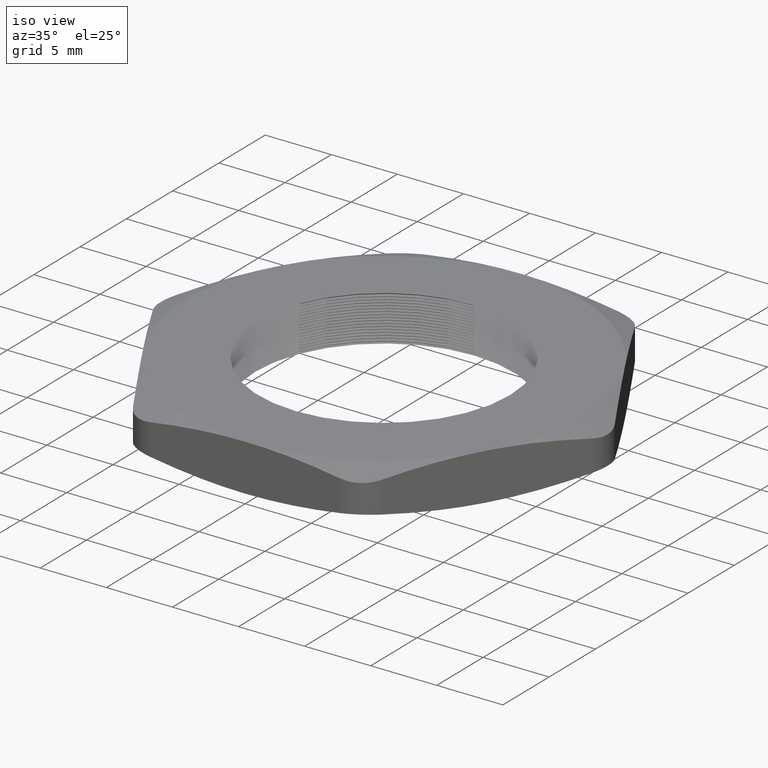
[diagram: clean part render]
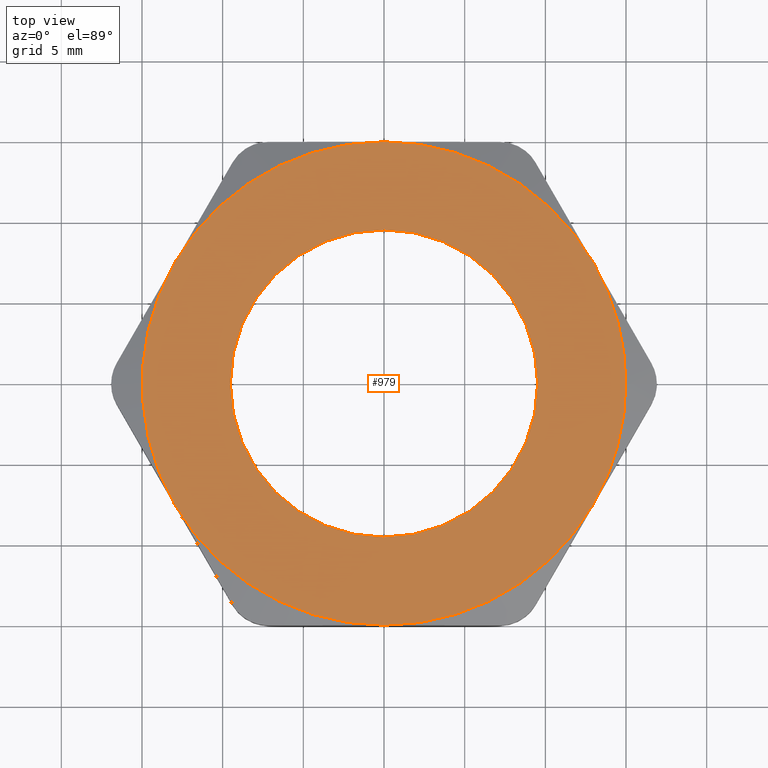
[diagram: tour spotlight — one face highlighted and labeled with its STEP entity id]
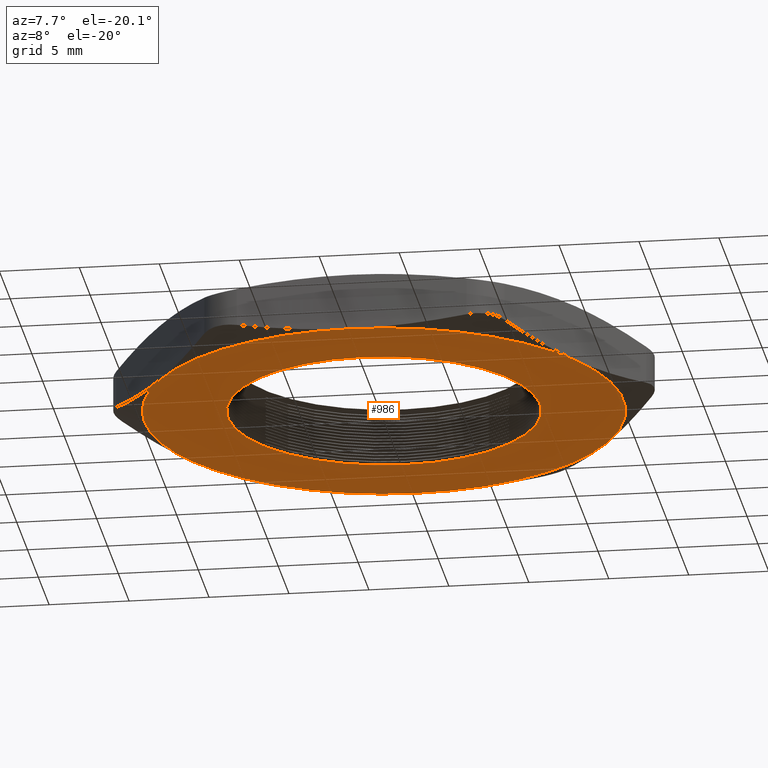
[diagram: tour spotlight — one face highlighted and labeled with its STEP entity id]
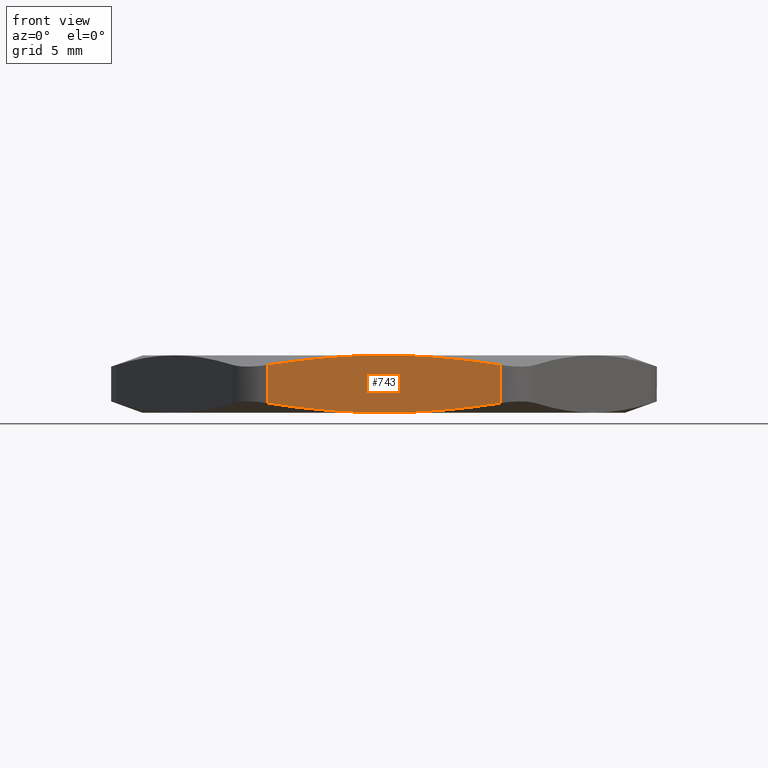
[diagram: tour spotlight — one face highlighted and labeled with its STEP entity id]
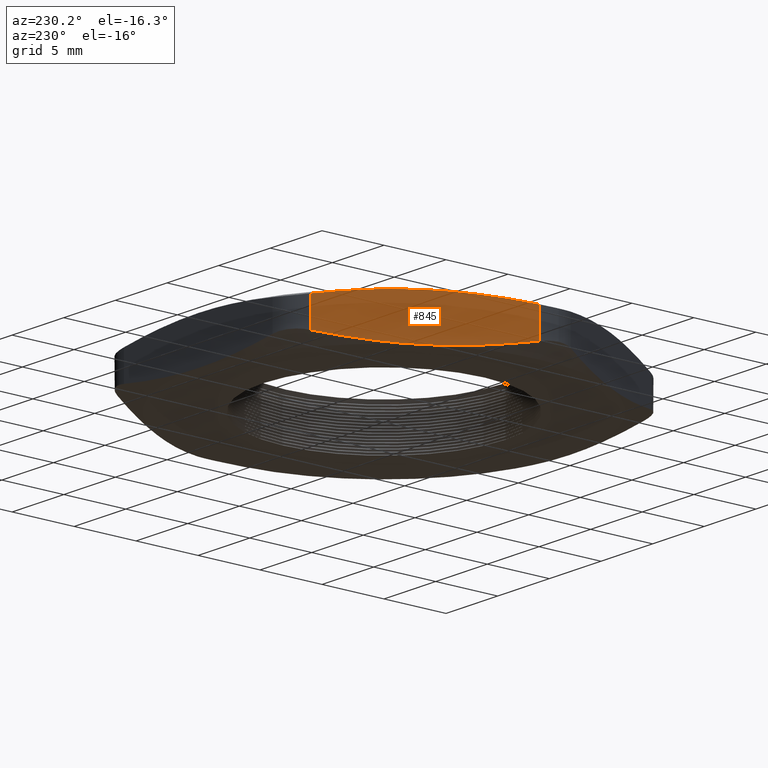
[diagram: tour spotlight — one face highlighted and labeled with its STEP entity id]
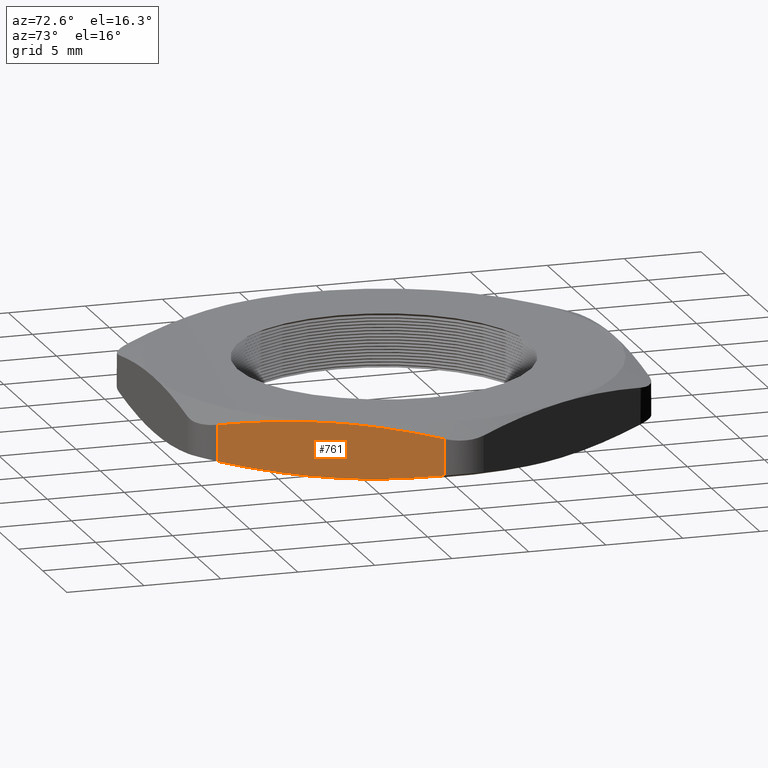
[diagram: tour spotlight — one face highlighted and labeled with its STEP entity id]
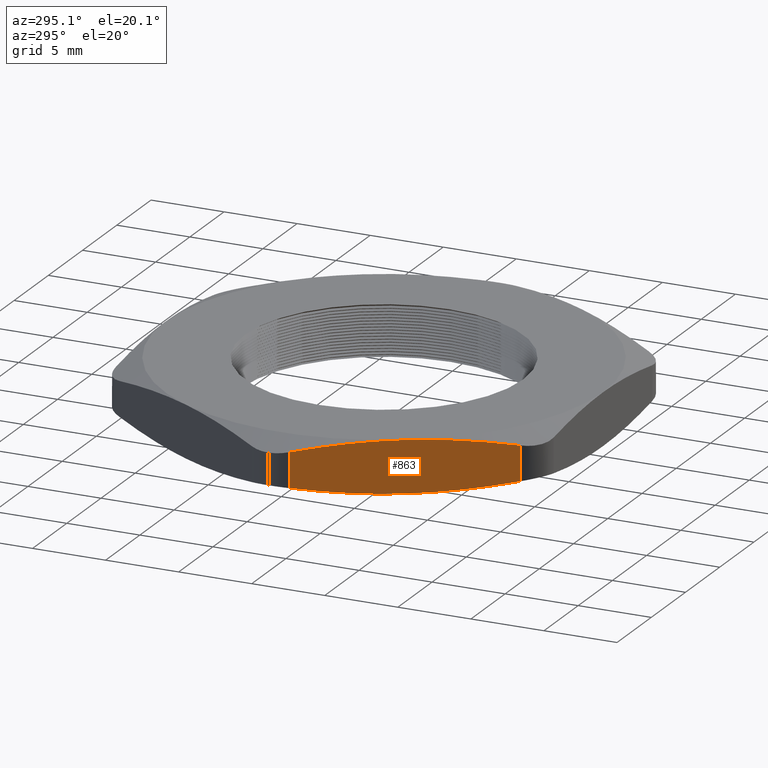
[diagram: tour spotlight — one face highlighted and labeled with its STEP entity id]
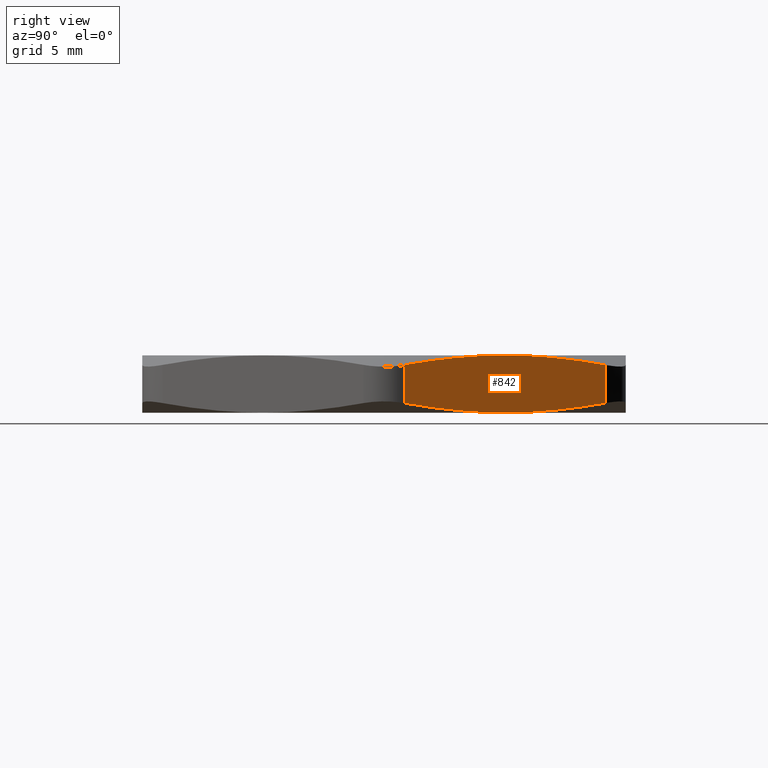
[diagram: tour spotlight — one face highlighted and labeled with its STEP entity id]
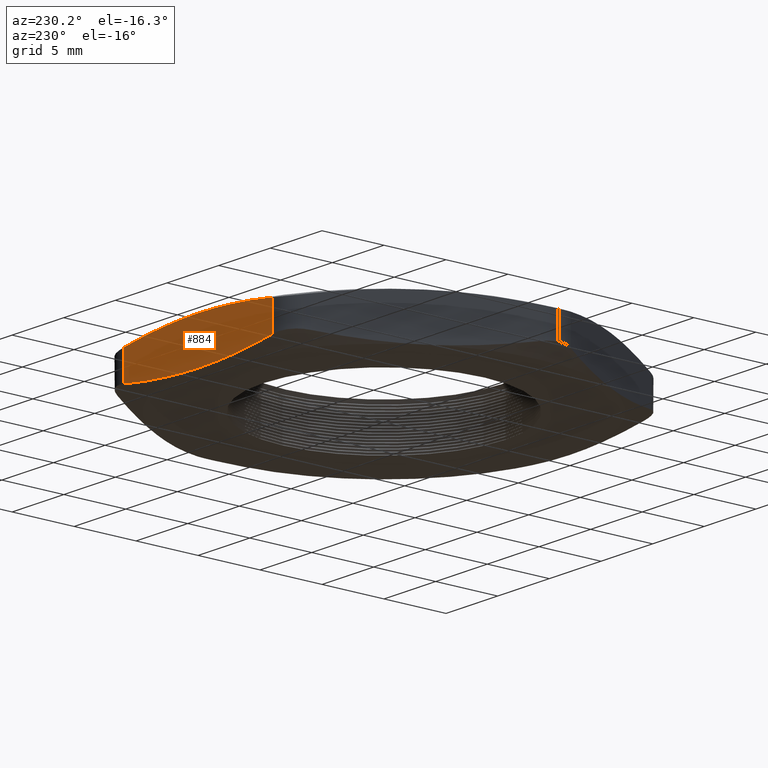
[diagram: tour spotlight — one face highlighted and labeled with its STEP entity id]
A machine part: a face-by-face anatomy tour. The part has 97 B-rep faces; the first image is the clean iso view, then the 8 largest visible faces are spotlighted one at a time (largest first), each with its STEP entity span.

Face 1 — top view, entity #979. In plain terms, the highlighted planar face has unit normal (-0, 0, 1).
Definition (entity closure, byte-faithful):
#46 = VERTEX_POINT ( 'NONE', #1362 ) ;
#54 = EDGE_CURVE ( 'NONE', #46, #60, #1412, .T. ) ;
#60 = VERTEX_POINT ( 'NONE', #1399 ) ;
#770 = VERTEX_POINT ( 'NONE', #2114 ) ;
#792 = VERTEX_POINT ( 'NONE', #2140 ) ;
#810 = EDGE_CURVE ( 'NONE', #811, #812, #2186, .T. ) ;
#811 = VERTEX_POINT ( 'NONE', #2181 ) ;
#812 = VERTEX_POINT ( 'NONE', #2180 ) ;
#833 = VERTEX_POINT ( 'NONE', #2202 ) ;
#852 = VERTEX_POINT ( 'NONE', #2270 ) ;
#895 = VERTEX_POINT ( 'NONE', #2366 ) ;
#959 = ORIENTED_EDGE ( 'NONE', *, *, #54, .T. ) ;
#960 = ORIENTED_EDGE ( 'NONE', *, *, #961, .T. ) ;
#961 = EDGE_CURVE ( 'NONE', #833, #811, #2556, .T. ) ;
#962 = ORIENTED_EDGE ( 'NONE', *, *, #810, .T. ) ;
#963 = ORIENTED_EDGE ( 'NONE', *, *, #964, .T. ) ;
#964 = EDGE_CURVE ( 'NONE', #812, #895, #2551, .T. ) ;
#965 = ORIENTED_EDGE ( 'NONE', *, *, #966, .T. ) ;
#966 = EDGE_CURVE ( 'NONE', #895, #852, #2546, .T. ) ;
#967 = ORIENTED_EDGE ( 'NONE', *, *, #968, .T. ) ;
#968 = EDGE_CURVE ( 'NONE', #852, #792, #2541, .T. ) ;
#969 = ORIENTED_EDGE ( 'NONE', *, *, #970, .T. ) ;
#970 = EDGE_CURVE ( 'NONE', #792, #770, #2536, .T. ) ;
#979 = ADVANCED_FACE ( 'NONE', ( #2569, #2568 ), #2567, .T. ) ;
#980 = EDGE_LOOP ( 'NONE', ( #981, #959 ) ) ;
#981 = ORIENTED_EDGE ( 'NONE', *, *, #982, .T. ) ;
#982 = EDGE_CURVE ( 'NONE', #60, #46, #2565, .T. ) ;
#983 = EDGE_LOOP ( 'NONE', ( #960, #962, #963, #965, #967, #969, #1023 ) ) ;
#1023 = ORIENTED_EDGE ( 'NONE', *, *, #1024, .T. ) ;
#1024 = EDGE_CURVE ( 'NONE', #770, #833, #2627, .T. ) ;
#1362 = CARTESIAN_POINT ( 'NONE',  ( 0.3749999999999999400, 4.684119303370593600E-017, 0.1400000000000000100 ) ) ;
#1399 = CARTESIAN_POINT ( 'NONE',  ( -0.3749999999999999400, 0.0000000000000000000, 0.1400000000000000100 ) ) ;
#1408 = DIRECTION ( 'NONE',  ( -1.000000000000000000, 0.0000000000000000000, 0.0000000000000000000 ) ) ;
#1409 = DIRECTION ( 'NONE',  ( -0.0000000000000000000, -0.0000000000000000000, -1.000000000000000000 ) ) ;
#1410 = CARTESIAN_POINT ( 'NONE',  ( 0.0000000000000000000, 0.0000000000000000000, 0.1400000000000000100 ) ) ;
#1411 = AXIS2_PLACEMENT_3D ( 'NONE', #1410, #1409, #1408 ) ;
#1412 = CIRCLE ( 'NONE', #1411, 0.3749999999999999400 ) ;
#2114 = CARTESIAN_POINT ( 'NONE',  ( 0.0000000000000000000, -0.5899999999999998600, 0.1400000000000000100 ) ) ;
#2140 = CARTESIAN_POINT ( 'NONE',  ( -0.5109549882328188200, -0.2949999999999997100, 0.1400000000000000100 ) ) ;
#2180 = CARTESIAN_POINT ( 'NONE',  ( 0.5109549882328189300, 0.2949999999999998700, 0.1400000000000000100 ) ) ;
#2181 = CARTESIAN_POINT ( 'NONE',  ( 0.5900000000000000800, 0.0000000000000000000, 0.1400000000000000100 ) ) ;
#2182 = DIRECTION ( 'NONE',  ( 1.000000000000000000, 0.0000000000000000000, 0.0000000000000000000 ) ) ;
#2183 = DIRECTION ( 'NONE',  ( 0.0000000000000000000, 0.0000000000000000000, 1.000000000000000000 ) ) ;
#2184 = CARTESIAN_POINT ( 'NONE',  ( 0.0000000000000000000, 0.0000000000000000000, 0.1400000000000000100 ) ) ;
#2185 = AXIS2_PLACEMENT_3D ( 'NONE', #2184, #2183, #2182 ) ;
#2186 = CIRCLE ( 'NONE', #2185, 0.5899999999999999700 ) ;
#2202 = CARTESIAN_POINT ( 'NONE',  ( 0.5109549882328188200, -0.2949999999999998200, 0.1400000000000000100 ) ) ;
#2270 = CARTESIAN_POINT ( 'NONE',  ( -0.5109549882328189300, 0.2949999999999999800, 0.1400000000000000100 ) ) ;
#2366 = CARTESIAN_POINT ( 'NONE',  ( 0.0000000000000000000, 0.5899999999999999700, 0.1400000000000000100 ) ) ;
#2532 = DIRECTION ( 'NONE',  ( 1.000000000000000000, 0.0000000000000000000, 0.0000000000000000000 ) ) ;
#2533 = DIRECTION ( 'NONE',  ( 0.0000000000000000000, 0.0000000000000000000, 1.000000000000000000 ) ) ;
#2534 = CARTESIAN_POINT ( 'NONE',  ( 0.0000000000000000000, 0.0000000000000000000, 0.1400000000000000100 ) ) ;
#2535 = AXIS2_PLACEMENT_3D ( 'NONE', #2534, #2533, #2532 ) ;
#2536 = CIRCLE ( 'NONE', #2535, 0.5899999999999999700 ) ;
#2537 = DIRECTION ( 'NONE',  ( 1.000000000000000000, 0.0000000000000000000, 0.0000000000000000000 ) ) ;
#2538 = DIRECTION ( 'NONE',  ( 0.0000000000000000000, 0.0000000000000000000, 1.000000000000000000 ) ) ;
#2539 = CARTESIAN_POINT ( 'NONE',  ( 0.0000000000000000000, 0.0000000000000000000, 0.1400000000000000100 ) ) ;
#2540 = AXIS2_PLACEMENT_3D ( 'NONE', #2539, #2538, #2537 ) ;
#2541 = CIRCLE ( 'NONE', #2540, 0.5899999999999999700 ) ;
#2542 = DIRECTION ( 'NONE',  ( 1.000000000000000000, 0.0000000000000000000, 0.0000000000000000000 ) ) ;
#2543 = DIRECTION ( 'NONE',  ( 0.0000000000000000000, 0.0000000000000000000, 1.000000000000000000 ) ) ;
#2544 = CARTESIAN_POINT ( 'NONE',  ( 0.0000000000000000000, 0.0000000000000000000, 0.1400000000000000100 ) ) ;
#2545 = AXIS2_PLACEMENT_3D ( 'NONE', #2544, #2543, #2542 ) ;
#2546 = CIRCLE ( 'NONE', #2545, 0.5899999999999999700 ) ;
#2547 = DIRECTION ( 'NONE',  ( 1.000000000000000000, 0.0000000000000000000, 0.0000000000000000000 ) ) ;
#2548 = DIRECTION ( 'NONE',  ( 0.0000000000000000000, 0.0000000000000000000, 1.000000000000000000 ) ) ;
#2549 = CARTESIAN_POINT ( 'NONE',  ( 0.0000000000000000000, 0.0000000000000000000, 0.1400000000000000100 ) ) ;
#2550 = AXIS2_PLACEMENT_3D ( 'NONE', #2549, #2548, #2547 ) ;
#2551 = CIRCLE ( 'NONE', #2550, 0.5899999999999999700 ) ;
#2552 = DIRECTION ( 'NONE',  ( 1.000000000000000000, 0.0000000000000000000, 0.0000000000000000000 ) ) ;
#2553 = DIRECTION ( 'NONE',  ( 0.0000000000000000000, 0.0000000000000000000, 1.000000000000000000 ) ) ;
#2554 = CARTESIAN_POINT ( 'NONE',  ( 0.0000000000000000000, 0.0000000000000000000, 0.1400000000000000100 ) ) ;
#2555 = AXIS2_PLACEMENT_3D ( 'NONE', #2554, #2553, #2552 ) ;
#2556 = CIRCLE ( 'NONE', #2555, 0.5899999999999999700 ) ;
#2558 = DIRECTION ( 'NONE',  ( -1.000000000000000000, 0.0000000000000000000, 0.0000000000000000000 ) ) ;
#2559 = DIRECTION ( 'NONE',  ( -0.0000000000000000000, -0.0000000000000000000, -1.000000000000000000 ) ) ;
#2560 = CARTESIAN_POINT ( 'NONE',  ( 0.0000000000000000000, 0.0000000000000000000, 0.1400000000000000100 ) ) ;
#2561 = AXIS2_PLACEMENT_3D ( 'NONE', #2560, #2559, #2558 ) ;
#2562 = DIRECTION ( 'NONE',  ( 1.000000000000000000, 0.0000000000000000000, 0.0000000000000000000 ) ) ;
#2563 = DIRECTION ( 'NONE',  ( -0.0000000000000000000, 0.0000000000000000000, 1.000000000000000000 ) ) ;
#2564 = AXIS2_PLACEMENT_3D ( 'NONE', #2566, #2563, #2562 ) ;
#2565 = CIRCLE ( 'NONE', #2561, 0.3749999999999999400 ) ;
#2566 = CARTESIAN_POINT ( 'NONE',  ( -1.021909976465637600, -0.5899999999999998600, 0.1400000000000000100 ) ) ;
#2567 = PLANE ( 'NONE',  #2564 ) ;
#2568 = FACE_OUTER_BOUND ( 'NONE', #983, .T. ) ;
#2569 = FACE_BOUND ( 'NONE', #980, .T. ) ;
#2623 = DIRECTION ( 'NONE',  ( 1.000000000000000000, 0.0000000000000000000, 0.0000000000000000000 ) ) ;
#2624 = DIRECTION ( 'NONE',  ( 0.0000000000000000000, 0.0000000000000000000, 1.000000000000000000 ) ) ;
#2625 = CARTESIAN_POINT ( 'NONE',  ( 0.0000000000000000000, 0.0000000000000000000, 0.1400000000000000100 ) ) ;
#2626 = AXIS2_PLACEMENT_3D ( 'NONE', #2625, #2624, #2623 ) ;
#2627 = CIRCLE ( 'NONE', #2626, 0.5899999999999999700 ) ;

Face 2 — auxiliary view, entity #986. In plain terms, the highlighted planar face has unit normal (-0, 0, 1).
Definition (entity closure, byte-faithful):
#35 = EDGE_CURVE ( 'NONE', #37, #36, #1379, .T. ) ;
#36 = VERTEX_POINT ( 'NONE', #1374 ) ;
#37 = VERTEX_POINT ( 'NONE', #1373 ) ;
#142 = EDGE_CURVE ( 'NONE', #147, #146, #1548, .T. ) ;
#146 = VERTEX_POINT ( 'NONE', #1539 ) ;
#147 = VERTEX_POINT ( 'NONE', #1602 ) ;
#746 = VERTEX_POINT ( 'NONE', #2019 ) ;
#756 = VERTEX_POINT ( 'NONE', #2045 ) ;
#783 = VERTEX_POINT ( 'NONE', #2092 ) ;
#817 = ORIENTED_EDGE ( 'NONE', *, *, #971, .F. ) ;
#889 = VERTEX_POINT ( 'NONE', #2379 ) ;
#902 = VERTEX_POINT ( 'NONE', #2399 ) ;
#911 = EDGE_LOOP ( 'NONE', ( #912, #914, #817, #972, #974, #976, #977 ) ) ;
#912 = ORIENTED_EDGE ( 'NONE', *, *, #913, .F. ) ;
#913 = EDGE_CURVE ( 'NONE', #902, #889, #2431, .T. ) ;
#914 = ORIENTED_EDGE ( 'NONE', *, *, #915, .F. ) ;
#915 = EDGE_CURVE ( 'NONE', #756, #902, #2426, .T. ) ;
#971 = EDGE_CURVE ( 'NONE', #746, #756, #2531, .T. ) ;
#972 = ORIENTED_EDGE ( 'NONE', *, *, #973, .F. ) ;
#973 = EDGE_CURVE ( 'NONE', #783, #746, #2584, .T. ) ;
#974 = ORIENTED_EDGE ( 'NONE', *, *, #975, .F. ) ;
#975 = EDGE_CURVE ( 'NONE', #36, #783, #2579, .T. ) ;
#976 = ORIENTED_EDGE ( 'NONE', *, *, #35, .F. ) ;
#977 = ORIENTED_EDGE ( 'NONE', *, *, #978, .T. ) ;
#978 = EDGE_CURVE ( 'NONE', #37, #889, #2574, .T. ) ;
#986 = ADVANCED_FACE ( 'NONE', ( #2618, #2557 ), #2617, .F. ) ;
#987 = EDGE_LOOP ( 'NONE', ( #988, #990 ) ) ;
#988 = ORIENTED_EDGE ( 'NONE', *, *, #989, .T. ) ;
#989 = EDGE_CURVE ( 'NONE', #146, #147, #2602, .T. ) ;
#990 = ORIENTED_EDGE ( 'NONE', *, *, #142, .T. ) ;
#1373 = CARTESIAN_POINT ( 'NONE',  ( -0.5109549882328187100, 0.2949999999999999800, 0.0000000000000000000 ) ) ;
#1374 = CARTESIAN_POINT ( 'NONE',  ( -0.5900000000000000800, 0.0000000000000000000, 0.0000000000000000000 ) ) ;
#1375 = DIRECTION ( 'NONE',  ( 1.000000000000000000, 0.0000000000000000000, 0.0000000000000000000 ) ) ;
#1376 = DIRECTION ( 'NONE',  ( -0.0000000000000000000, 0.0000000000000000000, 1.000000000000000000 ) ) ;
#1377 = CARTESIAN_POINT ( 'NONE',  ( 0.0000000000000000000, 0.0000000000000000000, 0.0000000000000000000 ) ) ;
#1378 = AXIS2_PLACEMENT_3D ( 'NONE', #1377, #1376, #1375 ) ;
#1379 = CIRCLE ( 'NONE', #1378, 0.5899999999999999700 ) ;
#1539 = CARTESIAN_POINT ( 'NONE',  ( 0.3842153903091734000, 0.0000000000000000000, 0.0000000000000000000 ) ) ;
#1544 = DIRECTION ( 'NONE',  ( 1.000000000000000000, 0.0000000000000000000, 0.0000000000000000000 ) ) ;
#1545 = DIRECTION ( 'NONE',  ( -0.0000000000000000000, 0.0000000000000000000, 1.000000000000000000 ) ) ;
#1546 = CARTESIAN_POINT ( 'NONE',  ( 0.0000000000000000000, 0.0000000000000000000, 0.0000000000000000000 ) ) ;
#1547 = AXIS2_PLACEMENT_3D ( 'NONE', #1546, #1545, #1544 ) ;
#1548 = CIRCLE ( 'NONE', #1547, 0.3842153903091734000 ) ;
#1602 = CARTESIAN_POINT ( 'NONE',  ( -0.3842153903091734000, 4.740545430998427300E-017, 0.0000000000000000000 ) ) ;
#2019 = CARTESIAN_POINT ( 'NONE',  ( 0.0000000000000000000, -0.5899999999999999700, 0.0000000000000000000 ) ) ;
#2045 = CARTESIAN_POINT ( 'NONE',  ( 0.5109549882328188200, -0.2949999999999998700, 0.0000000000000000000 ) ) ;
#2092 = CARTESIAN_POINT ( 'NONE',  ( -0.5109549882328188200, -0.2949999999999997100, 0.0000000000000000000 ) ) ;
#2379 = CARTESIAN_POINT ( 'NONE',  ( 0.0000000000000000000, 0.5899999999999999700, 0.0000000000000000000 ) ) ;
#2399 = CARTESIAN_POINT ( 'NONE',  ( 0.5109549882328188200, 0.2949999999999998700, 0.0000000000000000000 ) ) ;
#2422 = DIRECTION ( 'NONE',  ( 1.000000000000000000, 0.0000000000000000000, 0.0000000000000000000 ) ) ;
#2423 = DIRECTION ( 'NONE',  ( -0.0000000000000000000, 0.0000000000000000000, 1.000000000000000000 ) ) ;
#2424 = CARTESIAN_POINT ( 'NONE',  ( 0.0000000000000000000, 0.0000000000000000000, 0.0000000000000000000 ) ) ;
#2425 = AXIS2_PLACEMENT_3D ( 'NONE', #2424, #2423, #2422 ) ;
#2426 = CIRCLE ( 'NONE', #2425, 0.5899999999999999700 ) ;
#2427 = DIRECTION ( 'NONE',  ( 1.000000000000000000, 0.0000000000000000000, 0.0000000000000000000 ) ) ;
#2428 = DIRECTION ( 'NONE',  ( -0.0000000000000000000, 0.0000000000000000000, 1.000000000000000000 ) ) ;
#2429 = CARTESIAN_POINT ( 'NONE',  ( 0.0000000000000000000, 0.0000000000000000000, 0.0000000000000000000 ) ) ;
#2430 = AXIS2_PLACEMENT_3D ( 'NONE', #2429, #2428, #2427 ) ;
#2431 = CIRCLE ( 'NONE', #2430, 0.5899999999999999700 ) ;
#2528 = DIRECTION ( 'NONE',  ( -0.0000000000000000000, 0.0000000000000000000, 1.000000000000000000 ) ) ;
#2529 = CARTESIAN_POINT ( 'NONE',  ( 0.0000000000000000000, 0.0000000000000000000, 0.0000000000000000000 ) ) ;
#2530 = AXIS2_PLACEMENT_3D ( 'NONE', #2529, #2528, #2585 ) ;
#2531 = CIRCLE ( 'NONE', #2530, 0.5899999999999999700 ) ;
#2557 = FACE_OUTER_BOUND ( 'NONE', #911, .T. ) ;
#2570 = DIRECTION ( 'NONE',  ( -1.000000000000000000, 0.0000000000000000000, 0.0000000000000000000 ) ) ;
#2571 = DIRECTION ( 'NONE',  ( 0.0000000000000000000, 0.0000000000000000000, -1.000000000000000000 ) ) ;
#2572 = CARTESIAN_POINT ( 'NONE',  ( 0.0000000000000000000, 0.0000000000000000000, 0.0000000000000000000 ) ) ;
#2573 = AXIS2_PLACEMENT_3D ( 'NONE', #2572, #2571, #2570 ) ;
#2574 = CIRCLE ( 'NONE', #2573, 0.5899999999999999700 ) ;
#2575 = DIRECTION ( 'NONE',  ( 1.000000000000000000, 0.0000000000000000000, 0.0000000000000000000 ) ) ;
#2576 = DIRECTION ( 'NONE',  ( -0.0000000000000000000, 0.0000000000000000000, 1.000000000000000000 ) ) ;
#2577 = CARTESIAN_POINT ( 'NONE',  ( 0.0000000000000000000, 0.0000000000000000000, 0.0000000000000000000 ) ) ;
#2578 = AXIS2_PLACEMENT_3D ( 'NONE', #2577, #2576, #2575 ) ;
#2579 = CIRCLE ( 'NONE', #2578, 0.5899999999999999700 ) ;
#2580 = DIRECTION ( 'NONE',  ( 1.000000000000000000, 0.0000000000000000000, 0.0000000000000000000 ) ) ;
#2581 = DIRECTION ( 'NONE',  ( -0.0000000000000000000, 0.0000000000000000000, 1.000000000000000000 ) ) ;
#2582 = CARTESIAN_POINT ( 'NONE',  ( 0.0000000000000000000, 0.0000000000000000000, 0.0000000000000000000 ) ) ;
#2583 = AXIS2_PLACEMENT_3D ( 'NONE', #2582, #2581, #2580 ) ;
#2584 = CIRCLE ( 'NONE', #2583, 0.5899999999999999700 ) ;
#2585 = DIRECTION ( 'NONE',  ( 1.000000000000000000, 0.0000000000000000000, 0.0000000000000000000 ) ) ;
#2598 = DIRECTION ( 'NONE',  ( 1.000000000000000000, 0.0000000000000000000, 0.0000000000000000000 ) ) ;
#2599 = DIRECTION ( 'NONE',  ( -0.0000000000000000000, 0.0000000000000000000, 1.000000000000000000 ) ) ;
#2600 = CARTESIAN_POINT ( 'NONE',  ( 0.0000000000000000000, 0.0000000000000000000, 0.0000000000000000000 ) ) ;
#2601 = AXIS2_PLACEMENT_3D ( 'NONE', #2600, #2599, #2598 ) ;
#2602 = CIRCLE ( 'NONE', #2601, 0.3842153903091734000 ) ;
#2603 = DIRECTION ( 'NONE',  ( 1.000000000000000000, 0.0000000000000000000, 0.0000000000000000000 ) ) ;
#2604 = DIRECTION ( 'NONE',  ( -0.0000000000000000000, 0.0000000000000000000, 1.000000000000000000 ) ) ;
#2605 = AXIS2_PLACEMENT_3D ( 'NONE', #2616, #2604, #2603 ) ;
#2616 = CARTESIAN_POINT ( 'NONE',  ( -1.021909976465637600, -0.5899999999999998600, 0.0000000000000000000 ) ) ;
#2617 = PLANE ( 'NONE',  #2605 ) ;
#2618 = FACE_BOUND ( 'NONE', #987, .T. ) ;

Face 3 — front view, entity #743. In plain terms, the highlighted planar face has unit normal (0, 1, 0).
Definition (entity closure, byte-faithful):
#172 = CARTESIAN_POINT ( 'NONE',  ( 0.2358826611893542800, -0.5899999999999998600, 0.1239890067589847200 ) ) ;
#174 = CARTESIAN_POINT ( 'NONE',  ( 0.2829016319029166200, -0.5899999999999998600, 0.1165898041837598600 ) ) ;
#741 = ORIENTED_EDGE ( 'NONE', *, *, #745, .F. ) ;
#743 = ADVANCED_FACE ( 'NONE', ( #2030 ), #1976, .F. ) ;
#744 = EDGE_LOOP ( 'NONE', ( #741, #748, #768, #771, #763, #760 ) ) ;
#745 = EDGE_CURVE ( 'NONE', #825, #746, #2020, .T. ) ;
#746 = VERTEX_POINT ( 'NONE', #2019 ) ;
#748 = ORIENTED_EDGE ( 'NONE', *, *, #749, .T. ) ;
#749 = EDGE_CURVE ( 'NONE', #825, #750, #2012, .T. ) ;
#750 = VERTEX_POINT ( 'NONE', #2008 ) ;
#758 = EDGE_CURVE ( 'NONE', #746, #764, #2038, .T. ) ;
#760 = ORIENTED_EDGE ( 'NONE', *, *, #758, .F. ) ;
#763 = ORIENTED_EDGE ( 'NONE', *, *, #765, .T. ) ;
#764 = VERTEX_POINT ( 'NONE', #2076 ) ;
#765 = EDGE_CURVE ( 'NONE', #766, #764, #2075, .T. ) ;
#766 = VERTEX_POINT ( 'NONE', #2071 ) ;
#767 = EDGE_CURVE ( 'NONE', #766, #770, #2070, .T. ) ;
#768 = ORIENTED_EDGE ( 'NONE', *, *, #769, .F. ) ;
#769 = EDGE_CURVE ( 'NONE', #770, #750, #2062, .T. ) ;
#770 = VERTEX_POINT ( 'NONE', #2114 ) ;
#771 = ORIENTED_EDGE ( 'NONE', *, *, #767, .F. ) ;
#825 = VERTEX_POINT ( 'NONE', #2167 ) ;
#1573 = CARTESIAN_POINT ( 'NONE',  ( 0.1888074652285850500, -0.5899999999999997500, 0.1298905240055037700 ) ) ;
#1974 = CARTESIAN_POINT ( 'NONE',  ( -0.3406366588218794300, -0.5899999999999998600, 0.1400000000000000100 ) ) ;
#1976 = PLANE ( 'NONE',  #2029 ) ;
#2008 = CARTESIAN_POINT ( 'NONE',  ( 0.2829016319029166200, -0.5899999999999998600, 0.1165898041837598600 ) ) ;
#2009 = DIRECTION ( 'NONE',  ( -0.0000000000000000000, -0.0000000000000000000, 1.000000000000000000 ) ) ;
#2010 = VECTOR ( 'NONE', #2009, 39.37007874015748100 ) ;
#2011 = CARTESIAN_POINT ( 'NONE',  ( 0.2829016319029166200, -0.5899999999999998600, 0.1400000000000000100 ) ) ;
#2012 = LINE ( 'NONE', #2011, #2010 ) ;
#2013 = CARTESIAN_POINT ( 'NONE',  ( 0.0000000000000000000, -0.5899999999999999700, 0.0000000000000000000 ) ) ;
#2014 = CARTESIAN_POINT ( 'NONE',  ( 0.04729674735058540800, -0.5899999999999998600, -4.915458914381254700E-017 ) ) ;
#2015 = CARTESIAN_POINT ( 'NONE',  ( 0.09451477370814065400, -0.5899999999999997500, 0.002096909879088093700 ) ) ;
#2016 = CARTESIAN_POINT ( 'NONE',  ( 0.1888074652285856900, -0.5899999999999998600, 0.01010947599449631800 ) ) ;
#2017 = CARTESIAN_POINT ( 'NONE',  ( 0.2358826611893551400, -0.5899999999999997500, 0.01601099324101541000 ) ) ;
#2018 = CARTESIAN_POINT ( 'NONE',  ( 0.2829016319029177300, -0.5899999999999998600, 0.02341019581623868900 ) ) ;
#2019 = CARTESIAN_POINT ( 'NONE',  ( 0.0000000000000000000, -0.5899999999999999700, 0.0000000000000000000 ) ) ;
#2020 = B_SPLINE_CURVE_WITH_KNOTS ( 'NONE', 3,
 ( #2018, #2017, #2016, #2015, #2014, #2013 ),
 .UNSPECIFIED., .F., .F.,
 ( 4, 2, 4 ),
 ( 0.02996640295419520200, 0.03359058919735818200, 0.03721477544052116700 ),
 .UNSPECIFIED. ) ;
#2021 = DIRECTION ( 'NONE',  ( 0.0000000000000000000, -0.0000000000000000000, 1.000000000000000000 ) ) ;
#2022 = DIRECTION ( 'NONE',  ( 0.0000000000000000000, 1.000000000000000000, 0.0000000000000000000 ) ) ;
#2029 = AXIS2_PLACEMENT_3D ( 'NONE', #1974, #2022, #2021 ) ;
#2030 = FACE_OUTER_BOUND ( 'NONE', #744, .T. ) ;
#2031 = CARTESIAN_POINT ( 'NONE',  ( -0.09417343624590549000, -0.5899999999999998600, 0.002075683217144505500 ) ) ;
#2032 = CARTESIAN_POINT ( 'NONE',  ( -0.04704775606604717800, -0.5899999999999997500, -5.027173889708099800E-017 ) ) ;
#2033 = CARTESIAN_POINT ( 'NONE',  ( 0.0000000000000000000, -0.5899999999999999700, 0.0000000000000000000 ) ) ;
#2038 = B_SPLINE_CURVE_WITH_KNOTS ( 'NONE', 3,
 ( #2033, #2032, #2031, #2082, #2081, #2080 ),
 .UNSPECIFIED., .F., .F.,
 ( 4, 2, 4 ),
 ( 0.03721477544052116700, 0.04081988234232052800, 0.04442498924411988900 ),
 .UNSPECIFIED. ) ;
#2056 = CARTESIAN_POINT ( 'NONE',  ( 0.09451477370814034800, -0.5899999999999998600, 0.1379030901209119800 ) ) ;
#2057 = CARTESIAN_POINT ( 'NONE',  ( 0.04729674735058522100, -0.5899999999999997500, 0.1400000000000000700 ) ) ;
#2058 = CARTESIAN_POINT ( 'NONE',  ( 0.0000000000000000000, -0.5899999999999998600, 0.1400000000000000100 ) ) ;
#2062 = B_SPLINE_CURVE_WITH_KNOTS ( 'NONE', 3,
 ( #2058, #2057, #2056, #1573, #172, #174 ),
 .UNSPECIFIED., .F., .F.,
 ( 4, 2, 4 ),
 ( 0.02216258283476369600, 0.02579298862878100900, 0.02942339442279831900 ),
 .UNSPECIFIED. ) ;
#2064 = CARTESIAN_POINT ( 'NONE',  ( 0.0000000000000000000, -0.5899999999999998600, 0.1400000000000000100 ) ) ;
#2065 = CARTESIAN_POINT ( 'NONE',  ( -0.04704775606604730300, -0.5899999999999997500, 0.1400000000000000700 ) ) ;
#2066 = CARTESIAN_POINT ( 'NONE',  ( -0.09417343624590561500, -0.5899999999999997500, 0.1379243167828555200 ) ) ;
#2067 = CARTESIAN_POINT ( 'NONE',  ( -0.1885694990668106400, -0.5899999999999999700, 0.1299184763548549800 ) ) ;
#2068 = CARTESIAN_POINT ( 'NONE',  ( -0.2359568793644981100, -0.5899999999999999700, 0.1239773273175950900 ) ) ;
#2069 = CARTESIAN_POINT ( 'NONE',  ( -0.2829016319029171700, -0.5899999999999998600, 0.1165898041837604000 ) ) ;
#2070 = B_SPLINE_CURVE_WITH_KNOTS ( 'NONE', 3,
 ( #2069, #2068, #2067, #2066, #2065, #2064 ),
 .UNSPECIFIED., .F., .F.,
 ( 4, 2, 4 ),
 ( 0.01493999541446500700, 0.01855128912461435200, 0.02216258283476369600 ),
 .UNSPECIFIED. ) ;
#2071 = CARTESIAN_POINT ( 'NONE',  ( -0.2829016319029171700, -0.5899999999999998600, 0.1165898041837604000 ) ) ;
#2072 = DIRECTION ( 'NONE',  ( -0.0000000000000000000, 0.0000000000000000000, -1.000000000000000000 ) ) ;
#2073 = VECTOR ( 'NONE', #2072, 39.37007874015748100 ) ;
#2074 = CARTESIAN_POINT ( 'NONE',  ( -0.2829016319029168400, -0.5899999999999998600, 0.1400000000000000100 ) ) ;
#2075 = LINE ( 'NONE', #2074, #2073 ) ;
#2076 = CARTESIAN_POINT ( 'NONE',  ( -0.2829016319029168400, -0.5899999999999998600, 0.02341019581624020900 ) ) ;
#2080 = CARTESIAN_POINT ( 'NONE',  ( -0.2829016319029168400, -0.5899999999999998600, 0.02341019581624020900 ) ) ;
#2081 = CARTESIAN_POINT ( 'NONE',  ( -0.2359568793644978300, -0.5899999999999998600, 0.01602267268240488100 ) ) ;
#2082 = CARTESIAN_POINT ( 'NONE',  ( -0.1885694990668102500, -0.5899999999999997500, 0.01008152364514498800 ) ) ;
#2114 = CARTESIAN_POINT ( 'NONE',  ( 0.0000000000000000000, -0.5899999999999998600, 0.1400000000000000100 ) ) ;
#2167 = CARTESIAN_POINT ( 'NONE',  ( 0.2829016319029177300, -0.5899999999999998600, 0.02341019581623868900 ) ) ;

Face 4 — auxiliary view, entity #845. In plain terms, the highlighted planar face has unit normal (0.866, -0.5, 0).
Definition (entity closure, byte-faithful):
#37 = VERTEX_POINT ( 'NONE', #1373 ) ;
#806 = EDGE_CURVE ( 'NONE', #820, #37, #2148, .T. ) ;
#820 = VERTEX_POINT ( 'NONE', #2169 ) ;
#845 = ADVANCED_FACE ( 'NONE', ( #2225 ), #2228, .F. ) ;
#846 = ORIENTED_EDGE ( 'NONE', *, *, #806, .F. ) ;
#847 = ORIENTED_EDGE ( 'NONE', *, *, #848, .T. ) ;
#848 = EDGE_CURVE ( 'NONE', #820, #849, #2223, .T. ) ;
#849 = VERTEX_POINT ( 'NONE', #2272 ) ;
#850 = ORIENTED_EDGE ( 'NONE', *, *, #851, .F. ) ;
#851 = EDGE_CURVE ( 'NONE', #852, #849, #2271, .T. ) ;
#852 = VERTEX_POINT ( 'NONE', #2270 ) ;
#853 = ORIENTED_EDGE ( 'NONE', *, *, #854, .F. ) ;
#854 = EDGE_CURVE ( 'NONE', #855, #852, #2263, .T. ) ;
#855 = VERTEX_POINT ( 'NONE', #2262 ) ;
#856 = ORIENTED_EDGE ( 'NONE', *, *, #857, .T. ) ;
#857 = EDGE_CURVE ( 'NONE', #855, #858, #2255, .T. ) ;
#858 = VERTEX_POINT ( 'NONE', #2251 ) ;
#860 = EDGE_LOOP ( 'NONE', ( #846, #847, #850, #853, #856, #861 ) ) ;
#861 = ORIENTED_EDGE ( 'NONE', *, *, #862, .F. ) ;
#862 = EDGE_CURVE ( 'NONE', #37, #858, #2296, .T. ) ;
#1373 = CARTESIAN_POINT ( 'NONE',  ( -0.5109549882328187100, 0.2949999999999999800, 0.0000000000000000000 ) ) ;
#2142 = CARTESIAN_POINT ( 'NONE',  ( -0.6288306681923673300, 0.09083333333333344600, 0.01599033084279020300 ) ) ;
#2143 = CARTESIAN_POINT ( 'NONE',  ( -0.6524058041842769600, 0.05000000000000014800, 0.02341019581624018100 ) ) ;
#2148 = B_SPLINE_CURVE_WITH_KNOTS ( 'NONE', 3,
 ( #2143, #2142, #2192, #2191, #2190, #2189 ),
 .UNSPECIFIED., .F., .F.,
 ( 4, 2, 4 ),
 ( 2.309401076750726800E-007, 0.003593081665274713900, 0.007185932390441752600 ),
 .UNSPECIFIED. ) ;
#2169 = CARTESIAN_POINT ( 'NONE',  ( -0.6524058041842769600, 0.05000000000000014800, 0.02341019581624018100 ) ) ;
#2189 = CARTESIAN_POINT ( 'NONE',  ( -0.5109549882328187100, 0.2949999999999999800, 0.0000000000000000000 ) ) ;
#2190 = CARTESIAN_POINT ( 'NONE',  ( -0.5345301242247284500, 0.2541666666666667600, -2.907924133880905200E-017 ) ) ;
#2191 = CARTESIAN_POINT ( 'NONE',  ( -0.5581052602166380900, 0.2133333333333334300, 0.002084342655727945300 ) ) ;
#2192 = CARTESIAN_POINT ( 'NONE',  ( -0.6052555322004576900, 0.1316666666666668800, 0.01008632702185034200 ) ) ;
#2217 = DIRECTION ( 'NONE',  ( -0.0000000000000000000, -0.0000000000000000000, 1.000000000000000000 ) ) ;
#2218 = VECTOR ( 'NONE', #2217, 39.37007874015748100 ) ;
#2219 = CARTESIAN_POINT ( 'NONE',  ( -0.6524058041842769600, 0.05000000000000014800, 0.1400000000000000100 ) ) ;
#2220 = DIRECTION ( 'NONE',  ( 0.4999999999999998900, 0.8660254037844386000, 0.0000000000000000000 ) ) ;
#2221 = DIRECTION ( 'NONE',  ( 0.8660254037844387100, -0.4999999999999999400, 0.0000000000000000000 ) ) ;
#2222 = CARTESIAN_POINT ( 'NONE',  ( -0.3406366588218791600, 0.5899999999999999700, 0.1400000000000000100 ) ) ;
#2223 = LINE ( 'NONE', #2219, #2218 ) ;
#2224 = AXIS2_PLACEMENT_3D ( 'NONE', #2222, #2221, #2220 ) ;
#2225 = FACE_OUTER_BOUND ( 'NONE', #860, .T. ) ;
#2228 = PLANE ( 'NONE',  #2224 ) ;
#2251 = CARTESIAN_POINT ( 'NONE',  ( -0.3695041722813604500, 0.5399999999999999200, 0.02341019581624018100 ) ) ;
#2252 = DIRECTION ( 'NONE',  ( 0.0000000000000000000, 0.0000000000000000000, -1.000000000000000000 ) ) ;
#2253 = VECTOR ( 'NONE', #2252, 39.37007874015748100 ) ;
#2254 = CARTESIAN_POINT ( 'NONE',  ( -0.3695041722813604500, 0.5399999999999999200, 0.1400000000000000100 ) ) ;
#2255 = LINE ( 'NONE', #2254, #2253 ) ;
#2256 = CARTESIAN_POINT ( 'NONE',  ( -0.5109549882328189300, 0.2949999999999999800, 0.1400000000000000100 ) ) ;
#2257 = CARTESIAN_POINT ( 'NONE',  ( -0.4873798522409090700, 0.3358333333333332600, 0.1400000000000000100 ) ) ;
#2258 = CARTESIAN_POINT ( 'NONE',  ( -0.4638047162489993300, 0.3766666666666664800, 0.1379156573442720500 ) ) ;
#2259 = CARTESIAN_POINT ( 'NONE',  ( -0.4166544442651798400, 0.4583333333333333100, 0.1299136729781496500 ) ) ;
#2260 = CARTESIAN_POINT ( 'NONE',  ( -0.3930793082732701400, 0.4991666666666665400, 0.1240096691572097900 ) ) ;
#2261 = CARTESIAN_POINT ( 'NONE',  ( -0.3695041722813604500, 0.5399999999999999200, 0.1165898041837598200 ) ) ;
#2262 = CARTESIAN_POINT ( 'NONE',  ( -0.3695041722813604500, 0.5399999999999999200, 0.1165898041837598200 ) ) ;
#2263 = B_SPLINE_CURVE_WITH_KNOTS ( 'NONE', 3,
 ( #2261, #2260, #2259, #2258, #2257, #2256 ),
 .UNSPECIFIED., .F., .F.,
 ( 4, 2, 4 ),
 ( 2.309401076763871700E-007, 0.003593081665274719100, 0.007185932390441761300 ),
 .UNSPECIFIED. ) ;
#2264 = CARTESIAN_POINT ( 'NONE',  ( -0.6524058041842769600, 0.05000000000000014800, 0.1165898041837598300 ) ) ;
#2265 = CARTESIAN_POINT ( 'NONE',  ( -0.6288306681923673300, 0.09083333333333344600, 0.1240096691572098300 ) ) ;
#2266 = CARTESIAN_POINT ( 'NONE',  ( -0.6052555322004575800, 0.1316666666666667100, 0.1299136729781496500 ) ) ;
#2267 = CARTESIAN_POINT ( 'NONE',  ( -0.5581052602166383100, 0.2133333333333333200, 0.1379156573442720800 ) ) ;
#2268 = CARTESIAN_POINT ( 'NONE',  ( -0.5345301242247284500, 0.2541666666666666500, 0.1400000000000000400 ) ) ;
#2269 = CARTESIAN_POINT ( 'NONE',  ( -0.5109549882328189300, 0.2949999999999999800, 0.1400000000000000100 ) ) ;
#2270 = CARTESIAN_POINT ( 'NONE',  ( -0.5109549882328189300, 0.2949999999999999800, 0.1400000000000000100 ) ) ;
#2271 = B_SPLINE_CURVE_WITH_KNOTS ( 'NONE', 3,
 ( #2269, #2268, #2267, #2266, #2265, #2264 ),
 .UNSPECIFIED., .F., .F.,
 ( 4, 2, 4 ),
 ( 0.007185932390441761300, 0.01077878311560879900, 0.01437163384077583600 ),
 .UNSPECIFIED. ) ;
#2272 = CARTESIAN_POINT ( 'NONE',  ( -0.6524058041842769600, 0.05000000000000014800, 0.1165898041837598300 ) ) ;
#2287 = CARTESIAN_POINT ( 'NONE',  ( -0.3695041722813604500, 0.5399999999999999200, 0.02341019581624018100 ) ) ;
#2288 = CARTESIAN_POINT ( 'NONE',  ( -0.3930793082732700300, 0.4991666666666667600, 0.01599033084279024800 ) ) ;
#2289 = CARTESIAN_POINT ( 'NONE',  ( -0.4166544442651798900, 0.4583333333333333100, 0.01008632702185038200 ) ) ;
#2290 = CARTESIAN_POINT ( 'NONE',  ( -0.4638047162489993300, 0.3766666666666667100, 0.002084342655727971400 ) ) ;
#2291 = CARTESIAN_POINT ( 'NONE',  ( -0.4873798522409089600, 0.3358333333333334300, -2.055889023552267700E-017 ) ) ;
#2292 = CARTESIAN_POINT ( 'NONE',  ( -0.5109549882328187100, 0.2949999999999999800, 0.0000000000000000000 ) ) ;
#2296 = B_SPLINE_CURVE_WITH_KNOTS ( 'NONE', 3,
 ( #2292, #2291, #2290, #2289, #2288, #2287 ),
 .UNSPECIFIED., .F., .F.,
 ( 4, 2, 4 ),
 ( 0.007185932390441752600, 0.01077878311560879300, 0.01437163384077583400 ),
 .UNSPECIFIED. ) ;

Face 5 — auxiliary view, entity #761. In plain terms, the highlighted planar face has unit normal (-0.866, 0.5, 0).
Definition (entity closure, byte-faithful):
#753 = EDGE_CURVE ( 'NONE', #762, #830, #2006, .T. ) ;
#754 = ORIENTED_EDGE ( 'NONE', *, *, #755, .F. ) ;
#755 = EDGE_CURVE ( 'NONE', #762, #756, #2046, .T. ) ;
#756 = VERTEX_POINT ( 'NONE', #2045 ) ;
#757 = ORIENTED_EDGE ( 'NONE', *, *, #753, .T. ) ;
#759 = EDGE_LOOP ( 'NONE', ( #754, #757, #831, #834, #837, #840 ) ) ;
#761 = ADVANCED_FACE ( 'NONE', ( #2037 ), #2036, .F. ) ;
#762 = VERTEX_POINT ( 'NONE', #2079 ) ;
#830 = VERTEX_POINT ( 'NONE', #2210 ) ;
#831 = ORIENTED_EDGE ( 'NONE', *, *, #832, .F. ) ;
#832 = EDGE_CURVE ( 'NONE', #833, #830, #2203, .T. ) ;
#833 = VERTEX_POINT ( 'NONE', #2202 ) ;
#834 = ORIENTED_EDGE ( 'NONE', *, *, #835, .F. ) ;
#835 = EDGE_CURVE ( 'NONE', #836, #833, #2195, .T. ) ;
#836 = VERTEX_POINT ( 'NONE', #2194 ) ;
#837 = ORIENTED_EDGE ( 'NONE', *, *, #838, .T. ) ;
#838 = EDGE_CURVE ( 'NONE', #836, #839, #2193, .T. ) ;
#839 = VERTEX_POINT ( 'NONE', #2240 ) ;
#840 = ORIENTED_EDGE ( 'NONE', *, *, #841, .F. ) ;
#841 = EDGE_CURVE ( 'NONE', #756, #839, #2239, .T. ) ;
#2006 = LINE ( 'NONE', #2055, #2048 ) ;
#2034 = CARTESIAN_POINT ( 'NONE',  ( 0.3406366588218791600, -0.5899999999999998600, 0.1400000000000000100 ) ) ;
#2035 = AXIS2_PLACEMENT_3D ( 'NONE', #2034, #2078, #2077 ) ;
#2036 = PLANE ( 'NONE',  #2035 ) ;
#2037 = FACE_OUTER_BOUND ( 'NONE', #759, .T. ) ;
#2039 = CARTESIAN_POINT ( 'NONE',  ( 0.5109549882328188200, -0.2949999999999998700, 0.0000000000000000000 ) ) ;
#2040 = CARTESIAN_POINT ( 'NONE',  ( 0.5345301242247285600, -0.2541666666666665400, -5.582413990959443900E-017 ) ) ;
#2041 = CARTESIAN_POINT ( 'NONE',  ( 0.5581052602166380900, -0.2133333333333331500, 0.002084342655727913700 ) ) ;
#2042 = CARTESIAN_POINT ( 'NONE',  ( 0.6052555322004576900, -0.1316666666666665200, 0.01008632702185032600 ) ) ;
#2043 = CARTESIAN_POINT ( 'NONE',  ( 0.6288306681923672100, -0.09083333333333318300, 0.01599033084279017500 ) ) ;
#2044 = CARTESIAN_POINT ( 'NONE',  ( 0.6524058041842769600, -0.04999999999999978100, 0.02341019581624018500 ) ) ;
#2045 = CARTESIAN_POINT ( 'NONE',  ( 0.5109549882328188200, -0.2949999999999998700, 0.0000000000000000000 ) ) ;
#2046 = B_SPLINE_CURVE_WITH_KNOTS ( 'NONE', 3,
 ( #2044, #2043, #2042, #2041, #2040, #2039 ),
 .UNSPECIFIED., .F., .F.,
 ( 4, 2, 4 ),
 ( 2.309401076811265600E-007, 0.003593081665274721700, 0.007185932390441762200 ),
 .UNSPECIFIED. ) ;
#2047 = DIRECTION ( 'NONE',  ( -0.0000000000000000000, -0.0000000000000000000, 1.000000000000000000 ) ) ;
#2048 = VECTOR ( 'NONE', #2047, 39.37007874015748100 ) ;
#2055 = CARTESIAN_POINT ( 'NONE',  ( 0.6524058041842769600, -0.04999999999999973900, 0.1400000000000000100 ) ) ;
#2077 = DIRECTION ( 'NONE',  ( -0.4999999999999998300, -0.8660254037844388200, 0.0000000000000000000 ) ) ;
#2078 = DIRECTION ( 'NONE',  ( -0.8660254037844388200, 0.4999999999999998300, 0.0000000000000000000 ) ) ;
#2079 = CARTESIAN_POINT ( 'NONE',  ( 0.6524058041842769600, -0.04999999999999978100, 0.02341019581624018500 ) ) ;
#2193 = LINE ( 'NONE', #2243, #2242 ) ;
#2194 = CARTESIAN_POINT ( 'NONE',  ( 0.3695041722813604000, -0.5399999999999998100, 0.1165898041837598300 ) ) ;
#2195 = B_SPLINE_CURVE_WITH_KNOTS ( 'NONE', 3,
 ( #2249, #2248, #2247, #2246, #2245, #2244 ),
 .UNSPECIFIED., .F., .F.,
 ( 4, 2, 4 ),
 ( 2.309401076763871400E-007, 0.003593081665274719100, 0.007185932390441761300 ),
 .UNSPECIFIED. ) ;
#2196 = CARTESIAN_POINT ( 'NONE',  ( 0.6524058041842769600, -0.04999999999999978100, 0.1165898041837598200 ) ) ;
#2197 = CARTESIAN_POINT ( 'NONE',  ( 0.6288306681923673300, -0.09083333333333311300, 0.1240096691572098300 ) ) ;
#2198 = CARTESIAN_POINT ( 'NONE',  ( 0.6052555322004574700, -0.1316666666666664300, 0.1299136729781496500 ) ) ;
#2199 = CARTESIAN_POINT ( 'NONE',  ( 0.5581052602166383100, -0.2133333333333331000, 0.1379156573442720800 ) ) ;
#2200 = CARTESIAN_POINT ( 'NONE',  ( 0.5345301242247282300, -0.2541666666666664300, 0.1400000000000000700 ) ) ;
#2201 = CARTESIAN_POINT ( 'NONE',  ( 0.5109549882328188200, -0.2949999999999998200, 0.1400000000000000100 ) ) ;
#2202 = CARTESIAN_POINT ( 'NONE',  ( 0.5109549882328188200, -0.2949999999999998200, 0.1400000000000000100 ) ) ;
#2203 = B_SPLINE_CURVE_WITH_KNOTS ( 'NONE', 3,
 ( #2201, #2200, #2199, #2198, #2197, #2196 ),
 .UNSPECIFIED., .F., .F.,
 ( 4, 2, 4 ),
 ( 0.007185932390441761300, 0.01077878311560880000, 0.01437163384077584100 ),
 .UNSPECIFIED. ) ;
#2210 = CARTESIAN_POINT ( 'NONE',  ( 0.6524058041842769600, -0.04999999999999978100, 0.1165898041837598200 ) ) ;
#2229 = CARTESIAN_POINT ( 'NONE',  ( 0.3695041722813604000, -0.5399999999999998100, 0.02341019581624016700 ) ) ;
#2230 = CARTESIAN_POINT ( 'NONE',  ( 0.3930793082732699200, -0.4991666666666666500, 0.01599033084279019200 ) ) ;
#2231 = CARTESIAN_POINT ( 'NONE',  ( 0.4166544442651797800, -0.4583333333333331500, 0.01008632702185031600 ) ) ;
#2232 = CARTESIAN_POINT ( 'NONE',  ( 0.4638047162489993300, -0.3766666666666666500, 0.002084342655727904100 ) ) ;
#2233 = CARTESIAN_POINT ( 'NONE',  ( 0.4873798522409090200, -0.3358333333333331000, -5.522388034067405500E-017 ) ) ;
#2234 = CARTESIAN_POINT ( 'NONE',  ( 0.5109549882328188200, -0.2949999999999998700, 0.0000000000000000000 ) ) ;
#2239 = B_SPLINE_CURVE_WITH_KNOTS ( 'NONE', 3,
 ( #2234, #2233, #2232, #2231, #2230, #2229 ),
 .UNSPECIFIED., .F., .F.,
 ( 4, 2, 4 ),
 ( 0.007185932390441762200, 0.01077878311560880400, 0.01437163384077584500 ),
 .UNSPECIFIED. ) ;
#2240 = CARTESIAN_POINT ( 'NONE',  ( 0.3695041722813604000, -0.5399999999999998100, 0.02341019581624016700 ) ) ;
#2241 = DIRECTION ( 'NONE',  ( 0.0000000000000000000, 0.0000000000000000000, -1.000000000000000000 ) ) ;
#2242 = VECTOR ( 'NONE', #2241, 39.37007874015748100 ) ;
#2243 = CARTESIAN_POINT ( 'NONE',  ( 0.3695041722813604500, -0.5399999999999998100, 0.1400000000000000100 ) ) ;
#2244 = CARTESIAN_POINT ( 'NONE',  ( 0.5109549882328188200, -0.2949999999999998200, 0.1400000000000000100 ) ) ;
#2245 = CARTESIAN_POINT ( 'NONE',  ( 0.4873798522409089600, -0.3358333333333331000, 0.1400000000000000700 ) ) ;
#2246 = CARTESIAN_POINT ( 'NONE',  ( 0.4638047162489993300, -0.3766666666666663200, 0.1379156573442721100 ) ) ;
#2247 = CARTESIAN_POINT ( 'NONE',  ( 0.4166544442651798400, -0.4583333333333330900, 0.1299136729781496800 ) ) ;
#2248 = CARTESIAN_POINT ( 'NONE',  ( 0.3930793082732701400, -0.4991666666666666500, 0.1240096691572097900 ) ) ;
#2249 = CARTESIAN_POINT ( 'NONE',  ( 0.3695041722813604000, -0.5399999999999998100, 0.1165898041837598300 ) ) ;

Face 6 — auxiliary view, entity #863. In plain terms, the highlighted planar face has unit normal (0.866, 0.5, -0).
Definition (entity closure, byte-faithful):
#742 = EDGE_CURVE ( 'NONE', #783, #794, #1975, .T. ) ;
#747 = ORIENTED_EDGE ( 'NONE', *, *, #742, .F. ) ;
#751 = ORIENTED_EDGE ( 'NONE', *, *, #787, .T. ) ;
#752 = EDGE_CURVE ( 'NONE', #797, #792, #2007, .T. ) ;
#783 = VERTEX_POINT ( 'NONE', #2092 ) ;
#784 = ORIENTED_EDGE ( 'NONE', *, *, #789, .T. ) ;
#785 = VERTEX_POINT ( 'NONE', #2091 ) ;
#787 = EDGE_CURVE ( 'NONE', #797, #794, #2090, .T. ) ;
#789 = EDGE_CURVE ( 'NONE', #867, #785, #2086, .T. ) ;
#790 = ORIENTED_EDGE ( 'NONE', *, *, #791, .F. ) ;
#791 = EDGE_CURVE ( 'NONE', #792, #785, #2141, .T. ) ;
#792 = VERTEX_POINT ( 'NONE', #2140 ) ;
#794 = VERTEX_POINT ( 'NONE', #2129 ) ;
#797 = VERTEX_POINT ( 'NONE', #2127 ) ;
#826 = ORIENTED_EDGE ( 'NONE', *, *, #752, .F. ) ;
#863 = ADVANCED_FACE ( 'NONE', ( #2297 ), #2295, .F. ) ;
#864 = EDGE_LOOP ( 'NONE', ( #865, #784, #790, #826, #751, #747 ) ) ;
#865 = ORIENTED_EDGE ( 'NONE', *, *, #866, .F. ) ;
#866 = EDGE_CURVE ( 'NONE', #867, #783, #2283, .T. ) ;
#867 = VERTEX_POINT ( 'NONE', #2331 ) ;
#1975 = B_SPLINE_CURVE_WITH_KNOTS ( 'NONE', 3,
 ( #2028, #2027, #2026, #2025, #2024, #2023 ),
 .UNSPECIFIED., .F., .F.,
 ( 4, 2, 4 ),
 ( 0.007185932390441757800, 0.01077878311560879700, 0.01437163384077583400 ),
 .UNSPECIFIED. ) ;
#2007 = B_SPLINE_CURVE_WITH_KNOTS ( 'NONE', 3,
 ( #2054, #2053, #2052, #2051, #2050, #2049 ),
 .UNSPECIFIED., .F., .F.,
 ( 4, 2, 4 ),
 ( 2.309401076761993700E-007, 0.003593081665274716100, 0.007185932390441756100 ),
 .UNSPECIFIED. ) ;
#2023 = CARTESIAN_POINT ( 'NONE',  ( -0.6524058041842769600, -0.04999999999999978100, 0.02341019581624018100 ) ) ;
#2024 = CARTESIAN_POINT ( 'NONE',  ( -0.6288306681923673300, -0.09083333333333315500, 0.01599033084279023000 ) ) ;
#2025 = CARTESIAN_POINT ( 'NONE',  ( -0.6052555322004578000, -0.1316666666666663800, 0.01008632702185037500 ) ) ;
#2026 = CARTESIAN_POINT ( 'NONE',  ( -0.5581052602166385300, -0.2133333333333330400, 0.002084342655727967900 ) ) ;
#2027 = CARTESIAN_POINT ( 'NONE',  ( -0.5345301242247284500, -0.2541666666666663700, -1.080467224056666200E-017 ) ) ;
#2028 = CARTESIAN_POINT ( 'NONE',  ( -0.5109549882328188200, -0.2949999999999997100, 0.0000000000000000000 ) ) ;
#2049 = CARTESIAN_POINT ( 'NONE',  ( -0.5109549882328188200, -0.2949999999999997100, 0.1400000000000000100 ) ) ;
#2050 = CARTESIAN_POINT ( 'NONE',  ( -0.5345301242247286800, -0.2541666666666664900, 0.1400000000000000100 ) ) ;
#2051 = CARTESIAN_POINT ( 'NONE',  ( -0.5581052602166383100, -0.2133333333333331200, 0.1379156573442720500 ) ) ;
#2052 = CARTESIAN_POINT ( 'NONE',  ( -0.6052555322004576900, -0.1316666666666665400, 0.1299136729781496500 ) ) ;
#2053 = CARTESIAN_POINT ( 'NONE',  ( -0.6288306681923672100, -0.09083333333333312700, 0.1240096691572097900 ) ) ;
#2054 = CARTESIAN_POINT ( 'NONE',  ( -0.6524058041842770700, -0.04999999999999980800, 0.1165898041837598300 ) ) ;
#2063 = CARTESIAN_POINT ( 'NONE',  ( -0.5109549882328188200, -0.2949999999999997100, 0.0000000000000000000 ) ) ;
#2083 = DIRECTION ( 'NONE',  ( 0.0000000000000000000, -0.0000000000000000000, 1.000000000000000000 ) ) ;
#2084 = VECTOR ( 'NONE', #2083, 39.37007874015748100 ) ;
#2085 = CARTESIAN_POINT ( 'NONE',  ( -0.3695041722813606800, -0.5399999999999998100, 0.1400000000000000100 ) ) ;
#2086 = LINE ( 'NONE', #2085, #2084 ) ;
#2087 = DIRECTION ( 'NONE',  ( 0.0000000000000000000, 0.0000000000000000000, -1.000000000000000000 ) ) ;
#2088 = VECTOR ( 'NONE', #2087, 39.37007874015748100 ) ;
#2089 = CARTESIAN_POINT ( 'NONE',  ( -0.6524058041842770700, -0.04999999999999983600, 0.1400000000000000100 ) ) ;
#2090 = LINE ( 'NONE', #2089, #2088 ) ;
#2091 = CARTESIAN_POINT ( 'NONE',  ( -0.3695041722813606800, -0.5399999999999998100, 0.1165898041837597900 ) ) ;
#2092 = CARTESIAN_POINT ( 'NONE',  ( -0.5109549882328188200, -0.2949999999999997100, 0.0000000000000000000 ) ) ;
#2127 = CARTESIAN_POINT ( 'NONE',  ( -0.6524058041842770700, -0.04999999999999980800, 0.1165898041837598300 ) ) ;
#2129 = CARTESIAN_POINT ( 'NONE',  ( -0.6524058041842769600, -0.04999999999999978100, 0.02341019581624018100 ) ) ;
#2134 = CARTESIAN_POINT ( 'NONE',  ( -0.3695041722813606800, -0.5399999999999998100, 0.1165898041837597900 ) ) ;
#2135 = CARTESIAN_POINT ( 'NONE',  ( -0.3930793082732703700, -0.4991666666666666500, 0.1240096691572097900 ) ) ;
#2136 = CARTESIAN_POINT ( 'NONE',  ( -0.4166544442651801100, -0.4583333333333331500, 0.1299136729781496500 ) ) ;
#2137 = CARTESIAN_POINT ( 'NONE',  ( -0.4638047162489994900, -0.3766666666666664800, 0.1379156573442720500 ) ) ;
#2138 = CARTESIAN_POINT ( 'NONE',  ( -0.4873798522409090200, -0.3358333333333332100, 0.1399999999999999900 ) ) ;
#2139 = CARTESIAN_POINT ( 'NONE',  ( -0.5109549882328188200, -0.2949999999999997100, 0.1400000000000000100 ) ) ;
#2140 = CARTESIAN_POINT ( 'NONE',  ( -0.5109549882328188200, -0.2949999999999997100, 0.1400000000000000100 ) ) ;
#2141 = B_SPLINE_CURVE_WITH_KNOTS ( 'NONE', 3,
 ( #2139, #2138, #2137, #2136, #2135, #2134 ),
 .UNSPECIFIED., .F., .F.,
 ( 4, 2, 4 ),
 ( 0.007185932390441756100, 0.01077878311560879700, 0.01437163384077583800 ),
 .UNSPECIFIED. ) ;
#2273 = CARTESIAN_POINT ( 'NONE',  ( -0.4873798522409092400, -0.3358333333333331500, -1.393936110048415700E-017 ) ) ;
#2274 = CARTESIAN_POINT ( 'NONE',  ( -0.4638047162489993800, -0.3766666666666663700, 0.002084342655727961800 ) ) ;
#2275 = CARTESIAN_POINT ( 'NONE',  ( -0.4166544442651802200, -0.4583333333333332600, 0.01008632702185037500 ) ) ;
#2276 = CARTESIAN_POINT ( 'NONE',  ( -0.3930793082732703700, -0.4991666666666665400, 0.01599033084279023400 ) ) ;
#2277 = CARTESIAN_POINT ( 'NONE',  ( -0.3695041722813606800, -0.5399999999999998100, 0.02341019581624020200 ) ) ;
#2283 = B_SPLINE_CURVE_WITH_KNOTS ( 'NONE', 3,
 ( #2277, #2276, #2275, #2274, #2273, #2063 ),
 .UNSPECIFIED., .F., .F.,
 ( 4, 2, 4 ),
 ( 2.309401076740175100E-007, 0.003593081665274715700, 0.007185932390441757800 ),
 .UNSPECIFIED. ) ;
#2285 = DIRECTION ( 'NONE',  ( -0.4999999999999995600, 0.8660254037844388200, 0.0000000000000000000 ) ) ;
#2286 = DIRECTION ( 'NONE',  ( 0.8660254037844389300, 0.4999999999999996100, -0.0000000000000000000 ) ) ;
#2293 = CARTESIAN_POINT ( 'NONE',  ( -0.6812733176437583100, 1.367116505689300400E-016, 0.1400000000000000100 ) ) ;
#2294 = AXIS2_PLACEMENT_3D ( 'NONE', #2293, #2286, #2285 ) ;
#2295 = PLANE ( 'NONE',  #2294 ) ;
#2297 = FACE_OUTER_BOUND ( 'NONE', #864, .T. ) ;
#2331 = CARTESIAN_POINT ( 'NONE',  ( -0.3695041722813606800, -0.5399999999999998100, 0.02341019581624020200 ) ) ;

Face 7 — right view, entity #842. In plain terms, the highlighted planar face has unit normal (-0.866, -0.5, 0).
Definition (entity closure, byte-faithful):
#802 = EDGE_CURVE ( 'NONE', #805, #812, #2163, .T. ) ;
#805 = VERTEX_POINT ( 'NONE', #2155 ) ;
#812 = VERTEX_POINT ( 'NONE', #2180 ) ;
#827 = VERTEX_POINT ( 'NONE', #2166 ) ;
#828 = ORIENTED_EDGE ( 'NONE', *, *, #829, .F. ) ;
#829 = EDGE_CURVE ( 'NONE', #902, #827, #2211, .T. ) ;
#842 = ADVANCED_FACE ( 'NONE', ( #2238 ), #2237, .F. ) ;
#843 = EDGE_LOOP ( 'NONE', ( #844, #903, #906, #908, #909, #828 ) ) ;
#844 = ORIENTED_EDGE ( 'NONE', *, *, #900, .F. ) ;
#900 = EDGE_CURVE ( 'NONE', #901, #902, #2401, .T. ) ;
#901 = VERTEX_POINT ( 'NONE', #2400 ) ;
#902 = VERTEX_POINT ( 'NONE', #2399 ) ;
#903 = ORIENTED_EDGE ( 'NONE', *, *, #904, .T. ) ;
#904 = EDGE_CURVE ( 'NONE', #901, #905, #2392, .T. ) ;
#905 = VERTEX_POINT ( 'NONE', #2388 ) ;
#906 = ORIENTED_EDGE ( 'NONE', *, *, #907, .F. ) ;
#907 = EDGE_CURVE ( 'NONE', #812, #905, #2387, .T. ) ;
#908 = ORIENTED_EDGE ( 'NONE', *, *, #802, .F. ) ;
#909 = ORIENTED_EDGE ( 'NONE', *, *, #910, .T. ) ;
#910 = EDGE_CURVE ( 'NONE', #805, #827, #2435, .T. ) ;
#2155 = CARTESIAN_POINT ( 'NONE',  ( 0.6524058041842770700, 0.05000000000000018300, 0.1165898041837598000 ) ) ;
#2157 = CARTESIAN_POINT ( 'NONE',  ( 0.5109549882328189300, 0.2949999999999998700, 0.1400000000000000100 ) ) ;
#2158 = CARTESIAN_POINT ( 'NONE',  ( 0.5345301242247287900, 0.2541666666666666000, 0.1399999999999999900 ) ) ;
#2159 = CARTESIAN_POINT ( 'NONE',  ( 0.5581052602166383100, 0.2133333333333333200, 0.1379156573442720000 ) ) ;
#2160 = CARTESIAN_POINT ( 'NONE',  ( 0.6052555322004578000, 0.1316666666666667700, 0.1299136729781496200 ) ) ;
#2161 = CARTESIAN_POINT ( 'NONE',  ( 0.6288306681923673300, 0.09083333333333343300, 0.1240096691572097600 ) ) ;
#2162 = CARTESIAN_POINT ( 'NONE',  ( 0.6524058041842770700, 0.05000000000000018300, 0.1165898041837598000 ) ) ;
#2163 = B_SPLINE_CURVE_WITH_KNOTS ( 'NONE', 3,
 ( #2162, #2161, #2160, #2159, #2158, #2157 ),
 .UNSPECIFIED., .F., .F.,
 ( 4, 2, 4 ),
 ( 2.309401076763871700E-007, 0.003593081665274712600, 0.007185932390441748300 ),
 .UNSPECIFIED. ) ;
#2166 = CARTESIAN_POINT ( 'NONE',  ( 0.6524058041842770700, 0.05000000000000018300, 0.02341019581624020900 ) ) ;
#2180 = CARTESIAN_POINT ( 'NONE',  ( 0.5109549882328189300, 0.2949999999999998700, 0.1400000000000000100 ) ) ;
#2204 = CARTESIAN_POINT ( 'NONE',  ( 0.6524058041842770700, 0.05000000000000018300, 0.02341019581624020900 ) ) ;
#2205 = CARTESIAN_POINT ( 'NONE',  ( 0.6288306681923673300, 0.09083333333333354400, 0.01599033084279023000 ) ) ;
#2206 = CARTESIAN_POINT ( 'NONE',  ( 0.6052555322004576900, 0.1316666666666667700, 0.01008632702185039200 ) ) ;
#2207 = CARTESIAN_POINT ( 'NONE',  ( 0.5581052602166384200, 0.2133333333333334000, 0.002084342655728005600 ) ) ;
#2208 = CARTESIAN_POINT ( 'NONE',  ( 0.5345301242247287900, 0.2541666666666666500, 4.531959745348794200E-017 ) ) ;
#2209 = CARTESIAN_POINT ( 'NONE',  ( 0.5109549882328188200, 0.2949999999999998700, 0.0000000000000000000 ) ) ;
#2211 = B_SPLINE_CURVE_WITH_KNOTS ( 'NONE', 3,
 ( #2209, #2208, #2207, #2206, #2205, #2204 ),
 .UNSPECIFIED., .F., .F.,
 ( 4, 2, 4 ),
 ( 0.007185932390441752600, 0.01077878311560878800, 0.01437163384077582400 ),
 .UNSPECIFIED. ) ;
#2226 = DIRECTION ( 'NONE',  ( 0.4999999999999998300, -0.8660254037844388200, 0.0000000000000000000 ) ) ;
#2227 = DIRECTION ( 'NONE',  ( -0.8660254037844388200, -0.4999999999999998300, 0.0000000000000000000 ) ) ;
#2235 = CARTESIAN_POINT ( 'NONE',  ( 0.6812733176437583100, 2.449740951351606300E-016, 0.1400000000000000100 ) ) ;
#2236 = AXIS2_PLACEMENT_3D ( 'NONE', #2235, #2227, #2226 ) ;
#2237 = PLANE ( 'NONE',  #2236 ) ;
#2238 = FACE_OUTER_BOUND ( 'NONE', #843, .T. ) ;
#2385 = CARTESIAN_POINT ( 'NONE',  ( 0.4873798522409091800, 0.3358333333333332100, 0.1399999999999999900 ) ) ;
#2386 = CARTESIAN_POINT ( 'NONE',  ( 0.5109549882328189300, 0.2949999999999998700, 0.1400000000000000100 ) ) ;
#2387 = B_SPLINE_CURVE_WITH_KNOTS ( 'NONE', 3,
 ( #2386, #2385, #2439, #2438, #2437, #2436 ),
 .UNSPECIFIED., .F., .F.,
 ( 4, 2, 4 ),
 ( 0.007185932390441748300, 0.01077878311560878800, 0.01437163384077582900 ),
 .UNSPECIFIED. ) ;
#2388 = CARTESIAN_POINT ( 'NONE',  ( 0.3695041722813607300, 0.5399999999999999200, 0.1165898041837597200 ) ) ;
#2389 = DIRECTION ( 'NONE',  ( -0.0000000000000000000, -0.0000000000000000000, 1.000000000000000000 ) ) ;
#2390 = VECTOR ( 'NONE', #2389, 39.37007874015748100 ) ;
#2391 = CARTESIAN_POINT ( 'NONE',  ( 0.3695041722813607300, 0.5399999999999999200, 0.1400000000000000100 ) ) ;
#2392 = LINE ( 'NONE', #2391, #2390 ) ;
#2393 = CARTESIAN_POINT ( 'NONE',  ( 0.5109549882328188200, 0.2949999999999998700, 0.0000000000000000000 ) ) ;
#2394 = CARTESIAN_POINT ( 'NONE',  ( 0.4873798522409092400, 0.3358333333333333700, 4.195147431676811400E-017 ) ) ;
#2395 = CARTESIAN_POINT ( 'NONE',  ( 0.4638047162489993800, 0.3766666666666666500, 0.002084342655728027300 ) ) ;
#2396 = CARTESIAN_POINT ( 'NONE',  ( 0.4166544442651802200, 0.4583333333333334300, 0.01008632702185043700 ) ) ;
#2397 = CARTESIAN_POINT ( 'NONE',  ( 0.3930793082732704200, 0.4991666666666665400, 0.01599033084279033800 ) ) ;
#2398 = CARTESIAN_POINT ( 'NONE',  ( 0.3695041722813607300, 0.5399999999999999200, 0.02341019581624028500 ) ) ;
#2399 = CARTESIAN_POINT ( 'NONE',  ( 0.5109549882328188200, 0.2949999999999998700, 0.0000000000000000000 ) ) ;
#2400 = CARTESIAN_POINT ( 'NONE',  ( 0.3695041722813607300, 0.5399999999999999200, 0.02341019581624028500 ) ) ;
#2401 = B_SPLINE_CURVE_WITH_KNOTS ( 'NONE', 3,
 ( #2398, #2397, #2396, #2395, #2394, #2393 ),
 .UNSPECIFIED., .F., .F.,
 ( 4, 2, 4 ),
 ( 2.309401076701454900E-007, 0.003593081665274711300, 0.007185932390441752600 ),
 .UNSPECIFIED. ) ;
#2432 = DIRECTION ( 'NONE',  ( 0.0000000000000000000, 0.0000000000000000000, -1.000000000000000000 ) ) ;
#2433 = VECTOR ( 'NONE', #2432, 39.37007874015748100 ) ;
#2434 = CARTESIAN_POINT ( 'NONE',  ( 0.6524058041842770700, 0.05000000000000021100, 0.1400000000000000100 ) ) ;
#2435 = LINE ( 'NONE', #2434, #2433 ) ;
#2436 = CARTESIAN_POINT ( 'NONE',  ( 0.3695041722813607300, 0.5399999999999999200, 0.1165898041837597200 ) ) ;
#2437 = CARTESIAN_POINT ( 'NONE',  ( 0.3930793082732704200, 0.4991666666666666500, 0.1240096691572097500 ) ) ;
#2438 = CARTESIAN_POINT ( 'NONE',  ( 0.4166544442651803300, 0.4583333333333331500, 0.1299136729781496000 ) ) ;
#2439 = CARTESIAN_POINT ( 'NONE',  ( 0.4638047162489996600, 0.3766666666666664800, 0.1379156573442719700 ) ) ;

Face 8 — auxiliary view, entity #884. In plain terms, the highlighted planar face has unit normal (0, -1, 0).
Definition (entity closure, byte-faithful):
#871 = ORIENTED_EDGE ( 'NONE', *, *, #872, .T. ) ;
#872 = EDGE_CURVE ( 'NONE', #898, #899, #2329, .T. ) ;
#873 = ORIENTED_EDGE ( 'NONE', *, *, #874, .F. ) ;
#874 = EDGE_CURVE ( 'NONE', #889, #899, #2315, .T. ) ;
#884 = ADVANCED_FACE ( 'NONE', ( #2342 ), #2344, .F. ) ;
#885 = EDGE_LOOP ( 'NONE', ( #886, #890, #893, #896, #871, #873 ) ) ;
#886 = ORIENTED_EDGE ( 'NONE', *, *, #887, .F. ) ;
#887 = EDGE_CURVE ( 'NONE', #888, #889, #2381, .T. ) ;
#888 = VERTEX_POINT ( 'NONE', #2380 ) ;
#889 = VERTEX_POINT ( 'NONE', #2379 ) ;
#890 = ORIENTED_EDGE ( 'NONE', *, *, #891, .T. ) ;
#891 = EDGE_CURVE ( 'NONE', #888, #892, #2372, .T. ) ;
#892 = VERTEX_POINT ( 'NONE', #2368 ) ;
#893 = ORIENTED_EDGE ( 'NONE', *, *, #894, .F. ) ;
#894 = EDGE_CURVE ( 'NONE', #895, #892, #2367, .T. ) ;
#895 = VERTEX_POINT ( 'NONE', #2366 ) ;
#896 = ORIENTED_EDGE ( 'NONE', *, *, #897, .F. ) ;
#897 = EDGE_CURVE ( 'NONE', #898, #895, #2359, .T. ) ;
#898 = VERTEX_POINT ( 'NONE', #2358 ) ;
#899 = VERTEX_POINT ( 'NONE', #2408 ) ;
#2304 = CARTESIAN_POINT ( 'NONE',  ( 0.2829016319029168900, 0.5899999999999999700, 0.02341019581624026500 ) ) ;
#2305 = CARTESIAN_POINT ( 'NONE',  ( 0.2358826611893545500, 0.5899999999999999700, 0.01601099324101534400 ) ) ;
#2306 = CARTESIAN_POINT ( 'NONE',  ( 0.1888074652285851000, 0.5899999999999997500, 0.01010947599449629100 ) ) ;
#2307 = CARTESIAN_POINT ( 'NONE',  ( 0.09451477370814037600, 0.5900000000000000800, 0.002096909879088118400 ) ) ;
#2308 = CARTESIAN_POINT ( 'NONE',  ( 0.04729674735058526900, 0.5899999999999999700, 9.003893533805554800E-019 ) ) ;
#2309 = CARTESIAN_POINT ( 'NONE',  ( 0.0000000000000000000, 0.5899999999999999700, 0.0000000000000000000 ) ) ;
#2315 = B_SPLINE_CURVE_WITH_KNOTS ( 'NONE', 3,
 ( #2309, #2308, #2307, #2306, #2305, #2304 ),
 .UNSPECIFIED., .F., .F.,
 ( 4, 2, 4 ),
 ( 0.02216258283476368900, 0.02579298862878100200, 0.02942339442279831600 ),
 .UNSPECIFIED. ) ;
#2316 = DIRECTION ( 'NONE',  ( 0.0000000000000000000, 0.0000000000000000000, -1.000000000000000000 ) ) ;
#2327 = VECTOR ( 'NONE', #2316, 39.37007874015748100 ) ;
#2328 = CARTESIAN_POINT ( 'NONE',  ( 0.2829016319029168900, 0.5899999999999999700, 0.1400000000000000100 ) ) ;
#2329 = LINE ( 'NONE', #2328, #2327 ) ;
#2342 = FACE_OUTER_BOUND ( 'NONE', #885, .T. ) ;
#2343 = AXIS2_PLACEMENT_3D ( 'NONE', #2384, #2383, #2382 ) ;
#2344 = PLANE ( 'NONE',  #2343 ) ;
#2358 = CARTESIAN_POINT ( 'NONE',  ( 0.2829016319029168900, 0.5899999999999999700, 0.1165898041837597500 ) ) ;
#2359 = B_SPLINE_CURVE_WITH_KNOTS ( 'NONE', 3,
 ( #2407, #2406, #2405, #2404, #2403, #2402 ),
 .UNSPECIFIED., .F., .F.,
 ( 4, 2, 4 ),
 ( 0.02996640295419522900, 0.03359058919735820300, 0.03721477544052118100 ),
 .UNSPECIFIED. ) ;
#2360 = CARTESIAN_POINT ( 'NONE',  ( -0.2829016319029170100, 0.5899999999999999700, 0.1165898041837604000 ) ) ;
#2361 = CARTESIAN_POINT ( 'NONE',  ( -0.2359568793644979400, 0.5899999999999999700, 0.1239773273175950700 ) ) ;
#2362 = CARTESIAN_POINT ( 'NONE',  ( -0.1885694990668104500, 0.5899999999999997500, 0.1299184763548549600 ) ) ;
#2363 = CARTESIAN_POINT ( 'NONE',  ( -0.09417343624590569800, 0.5900000000000000800, 0.1379243167828554700 ) ) ;
#2364 = CARTESIAN_POINT ( 'NONE',  ( -0.04704775606604737900, 0.5899999999999999700, 0.1399999999999999900 ) ) ;
#2365 = CARTESIAN_POINT ( 'NONE',  ( 0.0000000000000000000, 0.5899999999999999700, 0.1400000000000000100 ) ) ;
#2366 = CARTESIAN_POINT ( 'NONE',  ( 0.0000000000000000000, 0.5899999999999999700, 0.1400000000000000100 ) ) ;
#2367 = B_SPLINE_CURVE_WITH_KNOTS ( 'NONE', 3,
 ( #2365, #2364, #2363, #2362, #2361, #2360 ),
 .UNSPECIFIED., .F., .F.,
 ( 4, 2, 4 ),
 ( 0.03721477544052118100, 0.04081988234232054200, 0.04442498924411990300 ),
 .UNSPECIFIED. ) ;
#2368 = CARTESIAN_POINT ( 'NONE',  ( -0.2829016319029170100, 0.5899999999999999700, 0.1165898041837604000 ) ) ;
#2369 = DIRECTION ( 'NONE',  ( -0.0000000000000000000, -0.0000000000000000000, 1.000000000000000000 ) ) ;
#2370 = VECTOR ( 'NONE', #2369, 39.37007874015748100 ) ;
#2371 = CARTESIAN_POINT ( 'NONE',  ( -0.2829016319029166200, 0.5899999999999999700, 0.1400000000000000100 ) ) ;
#2372 = LINE ( 'NONE', #2371, #2370 ) ;
#2373 = CARTESIAN_POINT ( 'NONE',  ( 0.0000000000000000000, 0.5899999999999999700, 0.0000000000000000000 ) ) ;
#2374 = CARTESIAN_POINT ( 'NONE',  ( -0.04704775606604721900, 0.5899999999999999700, -6.669550765781892600E-020 ) ) ;
#2375 = CARTESIAN_POINT ( 'NONE',  ( -0.09417343624590553100, 0.5899999999999999700, 0.002075683217144553200 ) ) ;
#2376 = CARTESIAN_POINT ( 'NONE',  ( -0.1885694990668104200, 0.5900000000000000800, 0.01008152364514504000 ) ) ;
#2377 = CARTESIAN_POINT ( 'NONE',  ( -0.2359568793644978600, 0.5900000000000000800, 0.01602267268240493300 ) ) ;
#2378 = CARTESIAN_POINT ( 'NONE',  ( -0.2829016319029170100, 0.5899999999999999700, 0.02341019581623959800 ) ) ;
#2379 = CARTESIAN_POINT ( 'NONE',  ( 0.0000000000000000000, 0.5899999999999999700, 0.0000000000000000000 ) ) ;
#2380 = CARTESIAN_POINT ( 'NONE',  ( -0.2829016319029170100, 0.5899999999999999700, 0.02341019581623959800 ) ) ;
#2381 = B_SPLINE_CURVE_WITH_KNOTS ( 'NONE', 3,
 ( #2378, #2377, #2376, #2375, #2374, #2373 ),
 .UNSPECIFIED., .F., .F.,
 ( 4, 2, 4 ),
 ( 0.01493999541446500900, 0.01855128912461434900, 0.02216258283476368900 ),
 .UNSPECIFIED. ) ;
#2382 = DIRECTION ( 'NONE',  ( 0.0000000000000000000, -0.0000000000000000000, -1.000000000000000000 ) ) ;
#2383 = DIRECTION ( 'NONE',  ( 0.0000000000000000000, -1.000000000000000000, 0.0000000000000000000 ) ) ;
#2384 = CARTESIAN_POINT ( 'NONE',  ( 0.3406366588218794300, 0.5899999999999999700, 0.1400000000000000100 ) ) ;
#2402 = CARTESIAN_POINT ( 'NONE',  ( 0.0000000000000000000, 0.5899999999999999700, 0.1400000000000000100 ) ) ;
#2403 = CARTESIAN_POINT ( 'NONE',  ( 0.04729674735058512400, 0.5899999999999999700, 0.1400000000000000100 ) ) ;
#2404 = CARTESIAN_POINT ( 'NONE',  ( 0.09451477370814037600, 0.5899999999999999700, 0.1379030901209119000 ) ) ;
#2405 = CARTESIAN_POINT ( 'NONE',  ( 0.1888074652285852700, 0.5900000000000000800, 0.1298905240055037700 ) ) ;
#2406 = CARTESIAN_POINT ( 'NONE',  ( 0.2358826611893545500, 0.5900000000000000800, 0.1239890067589846900 ) ) ;
#2407 = CARTESIAN_POINT ( 'NONE',  ( 0.2829016319029168900, 0.5899999999999999700, 0.1165898041837597500 ) ) ;
#2408 = CARTESIAN_POINT ( 'NONE',  ( 0.2829016319029168900, 0.5899999999999999700, 0.02341019581624026500 ) ) ;